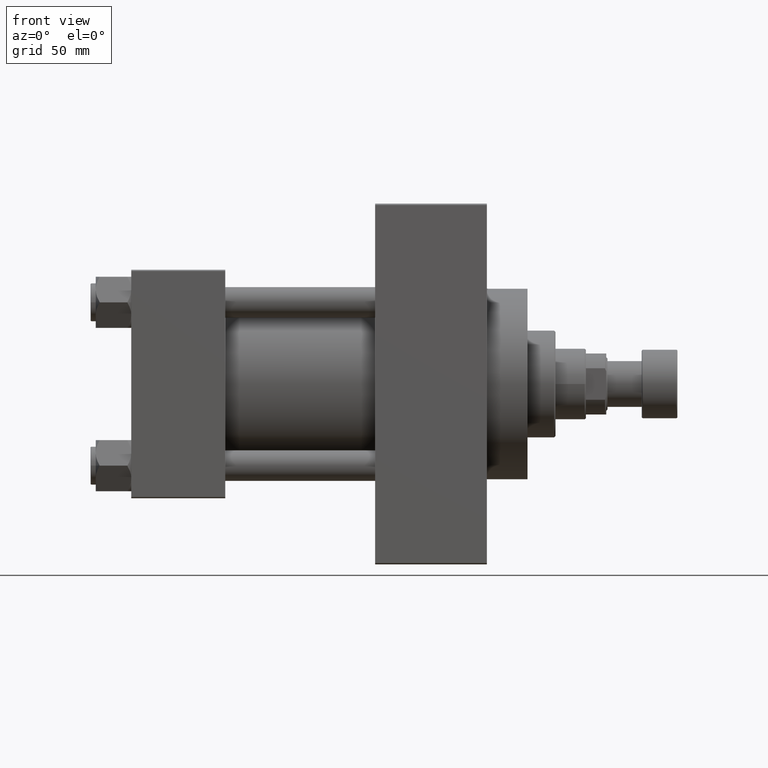
[diagram: clean part render]
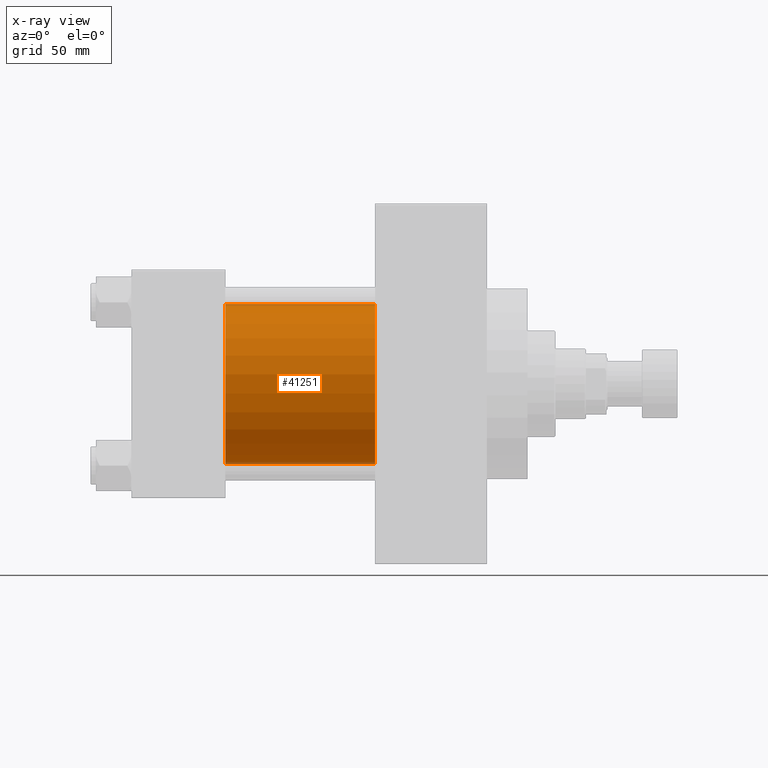
[diagram: x-ray — body ghosted, one internal face saturated and labeled with its STEP entity id]
A machine part, front view, then the same camera in x-ray: the body is ghosted and one INTERNAL B-rep face — a face not visible from any outside direction — is saturated and labeled: STEP entity #41251.
In plain terms, the highlighted cylindrical surface (partial cylindrical patch) has radius 31.5 mm, axis along (-1, -0, -0).
Its self-contained STEP definition (entity closure, byte-faithful):
#1059 = CARTESIAN_POINT ( 'NONE',  ( 37.00000000000000000, -2.602085213965210642E-15, 31.50000000000000000 ) ) ;
#1203 = DIRECTION ( 'NONE',  ( 0.000000000000000000, 0.000000000000000000, -1.000000000000000000 ) ) ;
#1718 = ORIENTED_EDGE ( 'NONE', *, *, #15964, .T. ) ;
#2036 = AXIS2_PLACEMENT_3D ( 'NONE', #19932, #15661, #31267 ) ;
#4006 = EDGE_CURVE ( 'NONE', #45388, #5666, #36296, .T. ) ;
#5666 = VERTEX_POINT ( 'NONE', #9586 ) ;
#6215 = LINE ( 'NONE', #9975, #11731 ) ;
#8766 = CARTESIAN_POINT ( 'NONE',  ( 96.00000000000000000, -2.602085213965210642E-15, 0.000000000000000000 ) ) ;
#9247 = CIRCLE ( 'NONE', #26913, 31.50000000000000000 ) ;
#9586 = CARTESIAN_POINT ( 'NONE',  ( 37.00000000000000000, 1.255552203348951850E-15, -31.50000000000000000 ) ) ;
#9975 = CARTESIAN_POINT ( 'NONE',  ( 96.00000000000000000, -2.602085213965210642E-15, 31.50000000000000000 ) ) ;
#10849 = DIRECTION ( 'NONE',  ( 1.000000000000000000, 0.000000000000000000, 0.000000000000000000 ) ) ;
#11731 = VECTOR ( 'NONE', #12992, 1000.000000000000000 ) ;
#11968 = VERTEX_POINT ( 'NONE', #23816 ) ;
#12964 = EDGE_LOOP ( 'NONE', ( #1718, #36799, #29250, #38642 ) ) ;
#12992 = DIRECTION ( 'NONE',  ( -1.000000000000000000, -0.000000000000000000, -0.000000000000000000 ) ) ;
#13093 = LINE ( 'NONE', #39290, #37201 ) ;
#15661 = DIRECTION ( 'NONE',  ( -1.000000000000000000, -0.000000000000000000, -0.000000000000000000 ) ) ;
#15964 = EDGE_CURVE ( 'NONE', #11968, #25375, #9247, .T. ) ;
#16121 = DIRECTION ( 'NONE',  ( -1.000000000000000000, -0.000000000000000000, -0.000000000000000000 ) ) ;
#19932 = CARTESIAN_POINT ( 'NONE',  ( 96.00000000000000000, -2.602085213965210642E-15, 0.000000000000000000 ) ) ;
#23816 = CARTESIAN_POINT ( 'NONE',  ( 96.00000000000000000, -2.602085213965210642E-15, 31.50000000000000000 ) ) ;
#25375 = VERTEX_POINT ( 'NONE', #46710 ) ;
#26913 = AXIS2_PLACEMENT_3D ( 'NONE', #8766, #35191, #1203 ) ;
#29250 = ORIENTED_EDGE ( 'NONE', *, *, #4006, .F. ) ;
#30773 = FACE_OUTER_BOUND ( 'NONE', #12964, .T. ) ;
#31267 = DIRECTION ( 'NONE',  ( 0.000000000000000000, 0.000000000000000000, 1.000000000000000000 ) ) ;
#32354 = EDGE_CURVE ( 'NONE', #25375, #5666, #13093, .T. ) ;
#34490 = CARTESIAN_POINT ( 'NONE',  ( 37.00000000000000000, -2.602085213965210642E-15, 0.000000000000000000 ) ) ;
#35191 = DIRECTION ( 'NONE',  ( 1.000000000000000000, 0.000000000000000000, 0.000000000000000000 ) ) ;
#36296 = CIRCLE ( 'NONE', #39493, 31.50000000000000000 ) ;
#36799 = ORIENTED_EDGE ( 'NONE', *, *, #32354, .T. ) ;
#37201 = VECTOR ( 'NONE', #16121, 1000.000000000000000 ) ;
#38642 = ORIENTED_EDGE ( 'NONE', *, *, #40001, .F. ) ;
#39290 = CARTESIAN_POINT ( 'NONE',  ( 96.00000000000000000, 1.255552203348951850E-15, -31.50000000000000000 ) ) ;
#39493 = AXIS2_PLACEMENT_3D ( 'NONE', #34490, #10849, #41044 ) ;
#40001 = EDGE_CURVE ( 'NONE', #11968, #45388, #6215, .T. ) ;
#41044 = DIRECTION ( 'NONE',  ( 0.000000000000000000, 0.000000000000000000, -1.000000000000000000 ) ) ;
#41251 = ADVANCED_FACE ( 'NONE', ( #30773 ), #46110, .F. ) ;
#45388 = VERTEX_POINT ( 'NONE', #1059 ) ;
#46110 = CYLINDRICAL_SURFACE ( 'NONE', #2036, 31.50000000000000000 ) ;
#46710 = CARTESIAN_POINT ( 'NONE',  ( 96.00000000000000000, 1.255552203348951850E-15, -31.50000000000000000 ) ) ;